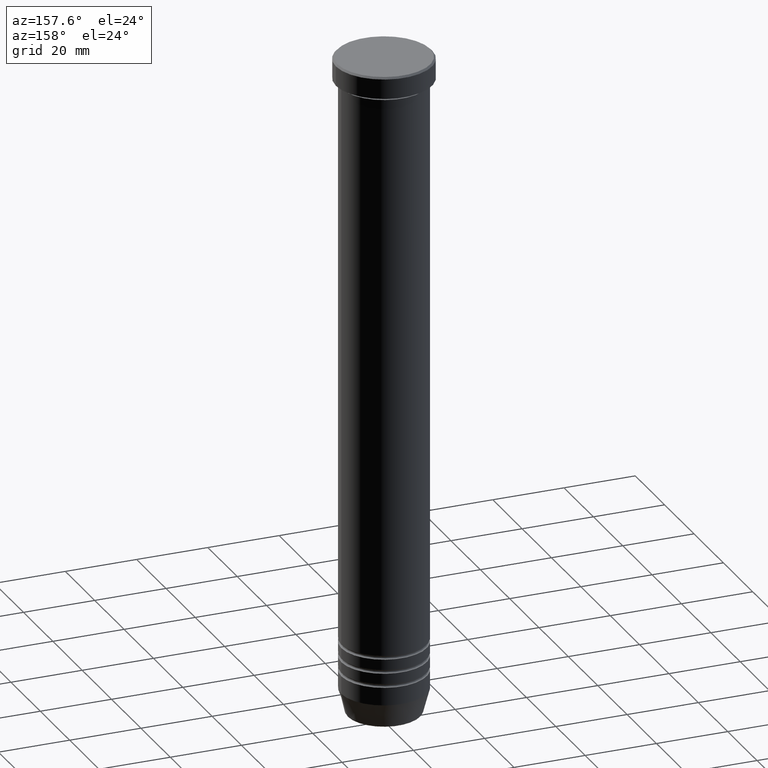
[diagram: clean part render]
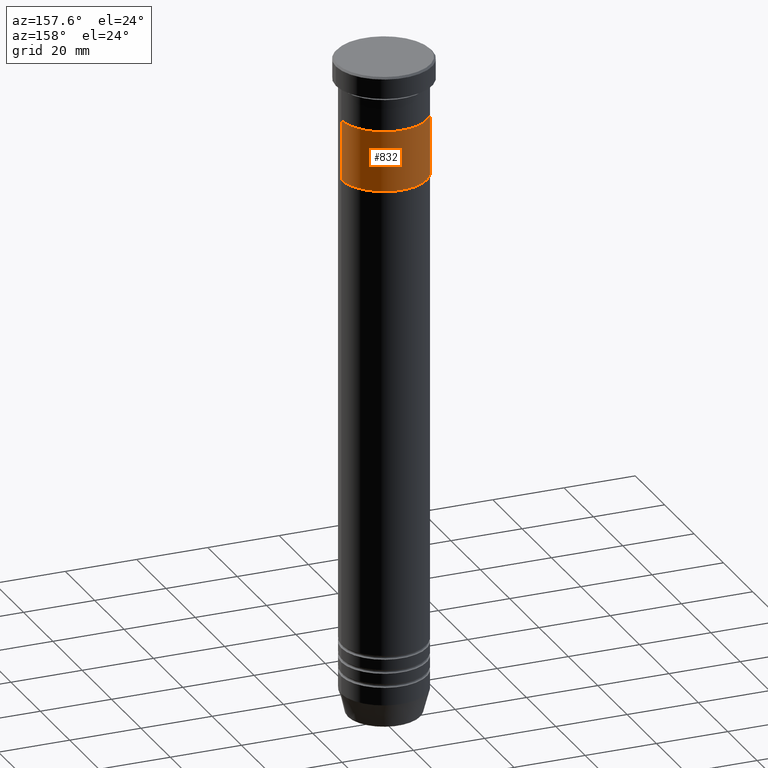
[diagram: same view with one face highlighted and labeled with its STEP entity id]
A machine part, auxiliary view. The second image highlights one B-rep face of the part: STEP entity #832.
In plain terms, the highlighted cylindrical surface (partial cylindrical patch) has radius 12 mm, axis along (-0, -0, 1).
Its self-contained STEP definition (entity closure, byte-faithful):
#65 = DIRECTION ( 'NONE',  ( 0.000000000000000000, 0.000000000000000000, -1.000000000000000000 ) ) ;
#67 = DIRECTION ( 'NONE',  ( -0.000000000000000000, -0.000000000000000000, 1.000000000000000000 ) ) ;
#73 = ORIENTED_EDGE ( 'NONE', *, *, #1041, .F. ) ;
#78 = EDGE_LOOP ( 'NONE', ( #73, #932, #293, #1064 ) ) ;
#91 = DIRECTION ( 'NONE',  ( -0.000000000000000000, -0.000000000000000000, 1.000000000000000000 ) ) ;
#148 = EDGE_CURVE ( 'NONE', #423, #462, #457, .T. ) ;
#182 = VECTOR ( 'NONE', #299, 1000.000000000000000 ) ;
#201 = CARTESIAN_POINT ( 'NONE',  ( 12.00000000000000178, 0.000000000000000000, -33.00000000000000000 ) ) ;
#273 = CARTESIAN_POINT ( 'NONE',  ( 12.00000000000000178, 0.000000000000000000, -33.00000000000000000 ) ) ;
#293 = ORIENTED_EDGE ( 'NONE', *, *, #908, .T. ) ;
#299 = DIRECTION ( 'NONE',  ( -0.000000000000000000, -0.000000000000000000, 1.000000000000000000 ) ) ;
#321 = VECTOR ( 'NONE', #91, 1000.000000000000000 ) ;
#332 = CARTESIAN_POINT ( 'NONE',  ( 0.000000000000000000, 0.000000000000000000, -33.00000000000000000 ) ) ;
#407 = AXIS2_PLACEMENT_3D ( 'NONE', #332, #598, #498 ) ;
#417 = DIRECTION ( 'NONE',  ( 1.000000000000000000, 0.000000000000000000, 0.000000000000000000 ) ) ;
#423 = VERTEX_POINT ( 'NONE', #273 ) ;
#457 = LINE ( 'NONE', #201, #182 ) ;
#462 = VERTEX_POINT ( 'NONE', #563 ) ;
#498 = DIRECTION ( 'NONE',  ( -1.000000000000000000, 0.000000000000000000, 0.000000000000000000 ) ) ;
#532 = LINE ( 'NONE', #893, #321 ) ;
#563 = CARTESIAN_POINT ( 'NONE',  ( 12.00000000000000178, 0.000000000000000000, -16.00000000000000000 ) ) ;
#598 = DIRECTION ( 'NONE',  ( 0.000000000000000000, 0.000000000000000000, -1.000000000000000000 ) ) ;
#610 = FACE_OUTER_BOUND ( 'NONE', #78, .T. ) ;
#619 = CIRCLE ( 'NONE', #692, 12.00000000000000178 ) ;
#620 = CIRCLE ( 'NONE', #407, 12.00000000000000178 ) ;
#629 = VERTEX_POINT ( 'NONE', #999 ) ;
#692 = AXIS2_PLACEMENT_3D ( 'NONE', #774, #65, #1132 ) ;
#746 = VERTEX_POINT ( 'NONE', #827 ) ;
#774 = CARTESIAN_POINT ( 'NONE',  ( 0.000000000000000000, 0.000000000000000000, -16.00000000000000000 ) ) ;
#827 = CARTESIAN_POINT ( 'NONE',  ( -12.00000000000000178, 1.469576158976824144E-15, -16.00000000000000000 ) ) ;
#832 = ADVANCED_FACE ( 'NONE', ( #610 ), #969, .T. ) ;
#839 = AXIS2_PLACEMENT_3D ( 'NONE', #879, #67, #417 ) ;
#879 = CARTESIAN_POINT ( 'NONE',  ( 0.000000000000000000, 0.000000000000000000, -33.00000000000000000 ) ) ;
#893 = CARTESIAN_POINT ( 'NONE',  ( -12.00000000000000178, 1.469576158976824144E-15, -33.00000000000000000 ) ) ;
#908 = EDGE_CURVE ( 'NONE', #746, #462, #619, .T. ) ;
#932 = ORIENTED_EDGE ( 'NONE', *, *, #1148, .T. ) ;
#969 = CYLINDRICAL_SURFACE ( 'NONE', #839, 12.00000000000000178 ) ;
#999 = CARTESIAN_POINT ( 'NONE',  ( -12.00000000000000178, 1.469576158976824144E-15, -33.00000000000000000 ) ) ;
#1041 = EDGE_CURVE ( 'NONE', #629, #423, #620, .T. ) ;
#1064 = ORIENTED_EDGE ( 'NONE', *, *, #148, .F. ) ;
#1132 = DIRECTION ( 'NONE',  ( -1.000000000000000000, 0.000000000000000000, 0.000000000000000000 ) ) ;
#1148 = EDGE_CURVE ( 'NONE', #629, #746, #532, .T. ) ;